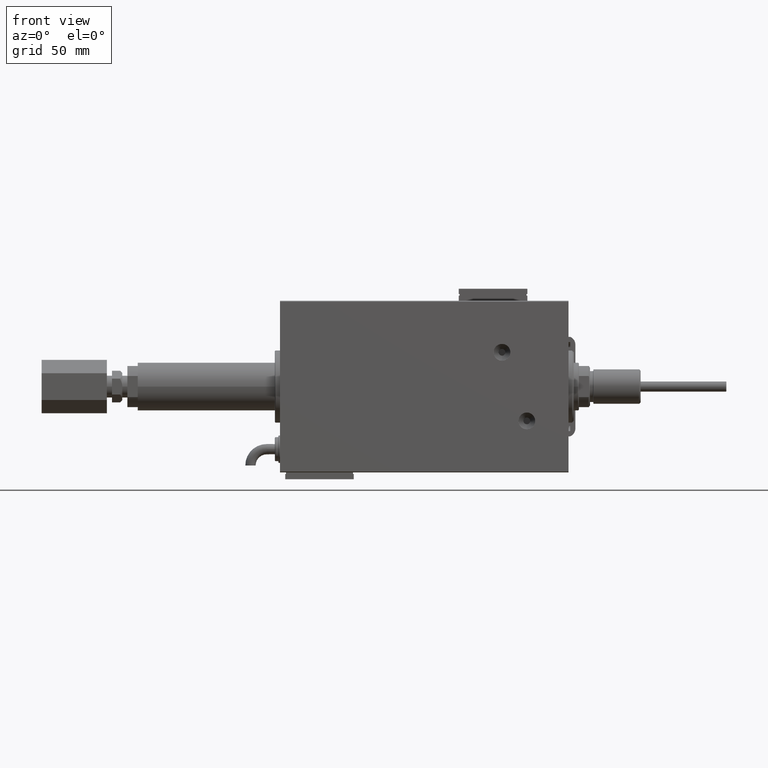
[diagram: clean part render]
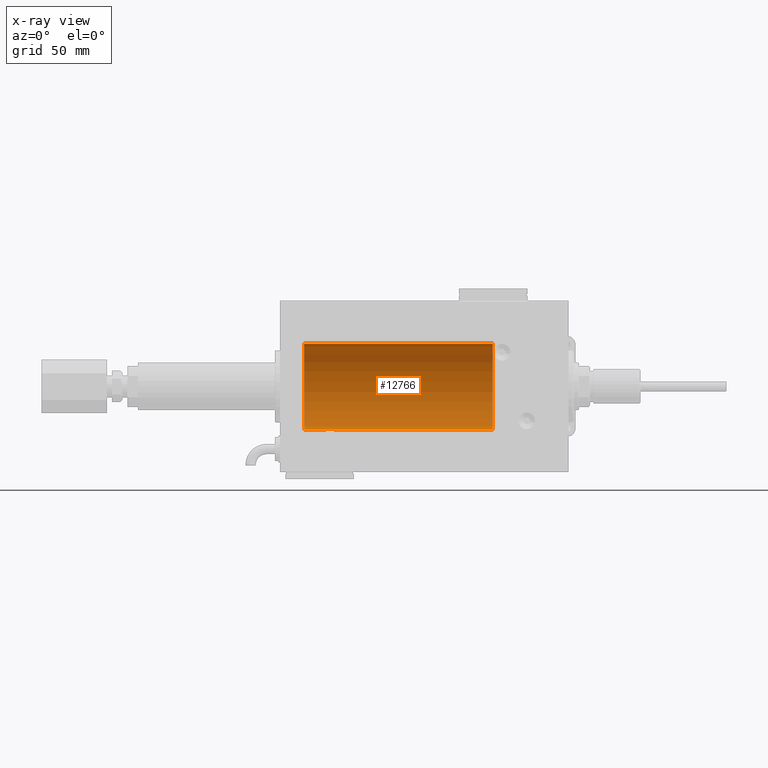
[diagram: x-ray — body ghosted, one internal face saturated and labeled with its STEP entity id]
A machine part, front view, then the same camera in x-ray: the body is ghosted and one INTERNAL B-rep face — a face not visible from any outside direction — is saturated and labeled: STEP entity #12766.
In plain terms, the highlighted cylindrical surface (partial cylindrical patch) has radius 25 mm, axis along (1, 0, -0).
Its self-contained STEP definition (entity closure, byte-faithful):
#149 = CARTESIAN_POINT ( 'NONE',  ( 136.7000000000000171, -0.3305063766663786651, -25.00000000000000355 ) ) ;
#343 = CARTESIAN_POINT ( 'NONE',  ( 154.1999999999999886, 3.061616997868383043E-15, -25.00000000000000000 ) ) ;
#461 = CARTESIAN_POINT ( 'NONE',  ( 136.9539362090592647, -1.109818057797411939, -24.97580694515541566 ) ) ;
#765 = CARTESIAN_POINT ( 'NONE',  ( 139.3670649517805771, -2.499872792855074355, -24.87469871246082675 ) ) ;
#1122 = ORIENTED_EDGE ( 'NONE', *, *, #55435, .T. ) ;
#1154 = VECTOR ( 'NONE', #19576, 1000.000000000000000 ) ;
#1381 = CARTESIAN_POINT ( 'NONE',  ( 141.6201490922092034, -0.6480119923854156250, -24.99212088949390775 ) ) ;
#2384 = CYLINDRICAL_SURFACE ( 'NONE', #51968, 25.00000000000000000 ) ;
#2624 = DIRECTION ( 'NONE',  ( 0.000000000000000000, 0.000000000000000000, 1.000000000000000000 ) ) ;
#3380 = DIRECTION ( 'NONE',  ( -1.000000000000000000, 0.000000000000000000, 0.000000000000000000 ) ) ;
#4659 = AXIS2_PLACEMENT_3D ( 'NONE', #40618, #3380, #51488 ) ;
#5110 = CARTESIAN_POINT ( 'NONE',  ( 141.6841784005765703, -0.3254210271412157907, -24.99840249400844527 ) ) ;
#5416 = CARTESIAN_POINT ( 'NONE',  ( 137.9491597607594429, -2.170728182476720836, -24.90574631553724672 ) ) ;
#6919 = VERTEX_POINT ( 'NONE', #18577 ) ;
#8650 = B_SPLINE_CURVE_WITH_KNOTS ( 'NONE', 3,
 ( #52604, #10061, #5110, #1381, #24027, #24647, #10684, #48250, #57873, #29614, #47637, #52015, #39222, #58187, #29308, #28997, #765, #15646, #47942, #28401, #19689, #38013, #5416, #19385, #24336, #43269, #47337, #42671, #461, #33360, #149, #57563 ),
 .UNSPECIFIED., .F., .F.,
 ( 4, 2, 2, 2, 2, 2, 2, 2, 2, 2, 2, 2, 2, 2, 2, 4 ),
 ( 0.007821024441662299820, 0.008309723826317907958, 0.008798423210973516095, 0.009287122595629124233, 0.009775821980284732371, 0.01026452136494034224, 0.01075322074959595038, 0.01124192013425155852, 0.01173061951890716839, 0.01221931890356277653, 0.01270801828821838467, 0.01319671767287399280, 0.01368541705752960094, 0.01417411644218520908, 0.01466281582684081722, 0.01564021459615200227 ),
 .UNSPECIFIED. ) ;
#9699 = VECTOR ( 'NONE', #26267, 1000.000000000000000 ) ;
#10061 = CARTESIAN_POINT ( 'NONE',  ( 141.7000000000000455, -0.1631750940176148190, -25.00000000000000355 ) ) ;
#10684 = CARTESIAN_POINT ( 'NONE',  ( 141.3701129028092396, -1.252049606094332912, -24.96900299967627745 ) ) ;
#12766 = ADVANCED_FACE ( 'NONE', ( #55142 ), #2384, .F. ) ;
#14026 = CARTESIAN_POINT ( 'NONE',  ( 154.1999999999999886, 3.061616997868383043E-15, -25.00000000000000000 ) ) ;
#15021 = EDGE_CURVE ( 'NONE', #27221, #29732, #40987, .T. ) ;
#15646 = CARTESIAN_POINT ( 'NONE',  ( 139.0367641036145301, -2.500125740978189626, -24.87467329022544860 ) ) ;
#16143 = EDGE_LOOP ( 'NONE', ( #33009, #23841, #34767, #60284, #1122, #40026 ) ) ;
#18235 = LINE ( 'NONE', #39901, #42533 ) ;
#18577 = CARTESIAN_POINT ( 'NONE',  ( 141.6999999999999886, 3.061616978453880738E-15, -25.00000000000000000 ) ) ;
#19385 = CARTESIAN_POINT ( 'NONE',  ( 137.6774322565980810, -1.989585286700249256, -24.92087098724766392 ) ) ;
#19576 = DIRECTION ( 'NONE',  ( -1.000000000000000000, -0.000000000000000000, -0.000000000000000000 ) ) ;
#19689 = CARTESIAN_POINT ( 'NONE',  ( 138.3956433908369945, -2.372734907014167227, -24.88722742718433523 ) ) ;
#20987 = CARTESIAN_POINT ( 'NONE',  ( 154.1999999999999886, 0.000000000000000000, 25.00000000000000000 ) ) ;
#21147 = AXIS2_PLACEMENT_3D ( 'NONE', #35208, #54164, #2624 ) ;
#21606 = CARTESIAN_POINT ( 'NONE',  ( 154.1999999999999886, 0.000000000000000000, 0.000000000000000000 ) ) ;
#23841 = ORIENTED_EDGE ( 'NONE', *, *, #40097, .T. ) ;
#24027 = CARTESIAN_POINT ( 'NONE',  ( 141.5721596940860252, -0.8058335233485474092, -24.98746277938382221 ) ) ;
#24336 = CARTESIAN_POINT ( 'NONE',  ( 137.5487886644088746, -1.884161199660616903, -24.92916496727982079 ) ) ;
#24647 = CARTESIAN_POINT ( 'NONE',  ( 141.4476025101955088, -1.106703319666884511, -24.97594585958023217 ) ) ;
#26267 = DIRECTION ( 'NONE',  ( -1.000000000000000000, -0.000000000000000000, -0.000000000000000000 ) ) ;
#27221 = VERTEX_POINT ( 'NONE', #14026 ) ;
#28401 = CARTESIAN_POINT ( 'NONE',  ( 138.5543933385136199, -2.420689345803757941, -24.88254961038873603 ) ) ;
#28997 = CARTESIAN_POINT ( 'NONE',  ( 139.5294768011427777, -2.483544361357259866, -24.87635491893502504 ) ) ;
#29154 = EDGE_CURVE ( 'NONE', #29732, #47890, #49855, .T. ) ;
#29308 = CARTESIAN_POINT ( 'NONE',  ( 139.8490439016909761, -2.419770561643895146, -24.88263927071751169 ) ) ;
#29338 = VERTEX_POINT ( 'NONE', #46426 ) ;
#29614 = CARTESIAN_POINT ( 'NONE',  ( 140.8538333614934004, -1.881857718844712313, -24.92933960374834257 ) ) ;
#29732 = VERTEX_POINT ( 'NONE', #37490 ) ;
#32214 = EDGE_CURVE ( 'NONE', #33005, #29338, #18235, .T. ) ;
#33005 = VERTEX_POINT ( 'NONE', #51174 ) ;
#33009 = ORIENTED_EDGE ( 'NONE', *, *, #15021, .F. ) ;
#33360 = CARTESIAN_POINT ( 'NONE',  ( 136.7665064476025520, -0.6588655613945841871, -24.99312727339970763 ) ) ;
#34767 = ORIENTED_EDGE ( 'NONE', *, *, #61187, .T. ) ;
#35208 = CARTESIAN_POINT ( 'NONE',  ( 154.1999999999999886, 0.000000000000000000, 0.000000000000000000 ) ) ;
#37343 = CIRCLE ( 'NONE', #4659, 25.00000000000000000 ) ;
#37490 = CARTESIAN_POINT ( 'NONE',  ( 154.1999999999999886, 0.000000000000000000, 25.00000000000000000 ) ) ;
#38013 = CARTESIAN_POINT ( 'NONE',  ( 138.0927615416158574, -2.247417070759890390, -24.89885693081946627 ) ) ;
#39222 = CARTESIAN_POINT ( 'NONE',  ( 140.3103679650886306, -2.245863995402894275, -24.89899750494197406 ) ) ;
#39901 = CARTESIAN_POINT ( 'NONE',  ( 154.1999999999999886, 3.061616997868383043E-15, -25.00000000000000000 ) ) ;
#40026 = ORIENTED_EDGE ( 'NONE', *, *, #29154, .F. ) ;
#40097 = EDGE_CURVE ( 'NONE', #27221, #6919, #61214, .T. ) ;
#40618 = CARTESIAN_POINT ( 'NONE',  ( 44.20000000000000284, 0.000000000000000000, 0.000000000000000000 ) ) ;
#40831 = DIRECTION ( 'NONE',  ( 0.000000000000000000, 0.000000000000000000, 1.000000000000000000 ) ) ;
#40987 = CIRCLE ( 'NONE', #21147, 25.00000000000000000 ) ;
#42533 = VECTOR ( 'NONE', #54214, 1000.000000000000000 ) ;
#42671 = CARTESIAN_POINT ( 'NONE',  ( 137.0317235850603765, -1.255214705003182996, -24.96884293994577675 ) ) ;
#43269 = CARTESIAN_POINT ( 'NONE',  ( 137.3181404585135112, -1.653834020452938924, -24.94550385189585029 ) ) ;
#46426 = CARTESIAN_POINT ( 'NONE',  ( 44.20000000000000284, 3.061616997868383043E-15, -25.00000000000000000 ) ) ;
#47337 = CARTESIAN_POINT ( 'NONE',  ( 137.2146196628290227, -1.528152964861311469, -24.95362559291378446 ) ) ;
#47637 = CARTESIAN_POINT ( 'NONE',  ( 140.7253618224308127, -1.987446652080253395, -24.92104239223420592 ) ) ;
#47890 = VERTEX_POINT ( 'NONE', #48897 ) ;
#47942 = CARTESIAN_POINT ( 'NONE',  ( 138.8740342996053698, -2.484007091859759875, -24.87630842367762796 ) ) ;
#48250 = CARTESIAN_POINT ( 'NONE',  ( 141.1874981583439705, -1.525407911884359313, -24.95379469572362297 ) ) ;
#48897 = CARTESIAN_POINT ( 'NONE',  ( 44.20000000000000284, 0.000000000000000000, 25.00000000000000000 ) ) ;
#49855 = LINE ( 'NONE', #20987, #9699 ) ;
#51174 = CARTESIAN_POINT ( 'NONE',  ( 136.6999999999999886, -3.862373350018130266E-15, -25.00000000000000000 ) ) ;
#51488 = DIRECTION ( 'NONE',  ( 0.000000000000000000, 0.000000000000000000, 1.000000000000000000 ) ) ;
#51968 = AXIS2_PLACEMENT_3D ( 'NONE', #21606, #58883, #40831 ) ;
#52015 = CARTESIAN_POINT ( 'NONE',  ( 140.4538319542450324, -2.169003991399862219, -24.90589728951138682 ) ) ;
#52604 = CARTESIAN_POINT ( 'NONE',  ( 141.6999999999999886, 3.061616978453880738E-15, -25.00000000000000000 ) ) ;
#54164 = DIRECTION ( 'NONE',  ( -1.000000000000000000, 0.000000000000000000, 0.000000000000000000 ) ) ;
#54214 = DIRECTION ( 'NONE',  ( -1.000000000000000000, -0.000000000000000000, -0.000000000000000000 ) ) ;
#55142 = FACE_OUTER_BOUND ( 'NONE', #16143, .T. ) ;
#55435 = EDGE_CURVE ( 'NONE', #29338, #47890, #37343, .T. ) ;
#57563 = CARTESIAN_POINT ( 'NONE',  ( 136.6999999999999886, -3.862373350018130266E-15, -25.00000000000000000 ) ) ;
#57873 = CARTESIAN_POINT ( 'NONE',  ( 141.0841238278646870, -1.651251241585098839, -24.94567559498349141 ) ) ;
#58187 = CARTESIAN_POINT ( 'NONE',  ( 140.0078834240580647, -2.371528299825741204, -24.88734287464371775 ) ) ;
#58883 = DIRECTION ( 'NONE',  ( -1.000000000000000000, -0.000000000000000000, -0.000000000000000000 ) ) ;
#60284 = ORIENTED_EDGE ( 'NONE', *, *, #32214, .T. ) ;
#61187 = EDGE_CURVE ( 'NONE', #6919, #33005, #8650, .T. ) ;
#61214 = LINE ( 'NONE', #343, #1154 ) ;